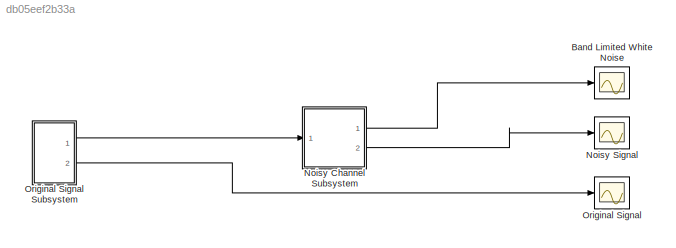
MODEL slx_db05eef2b33a
KIND model
CONFIG AbsTol = auto
CONFIG EnableMultiTasking = off
CONFIG FixedStep = auto
CONFIG MaxStep = auto
CONFIG MinStep = auto
CONFIG RelTol = 1e-3
CONFIG SampleTimeConstraint = Unconstrained
CONFIG Solver = VariableStepAuto
CONFIG SolverName = VariableStepAuto
CONFIG StartTime = 0.0
CONFIG StopTime = 10.0
BLOCK [Scope] Band Limited White Noise 
  Floating = off
  NumInputPorts = 3
  Ports = [3]
  ScopeSpecificationString = Simulink.scopes.TimeScopeBlockCfg('CurrentConfiguration', extmgr.ConfigurationSet(extmgr.Configuration('Core','General UI',true),extmgr.Configuration('Core','Source UI',true),extmgr.Configuration('Sources','WiredSimulink',true,'DataLoggingVariableName','ScopeData2'),extmgr.Configuration('Visuals','Time Domain',true,'SerializedDisplays',{struct('MinYLimReal','-2.94144','MaxYLimReal','3.76225','YLab...<+1442ch>
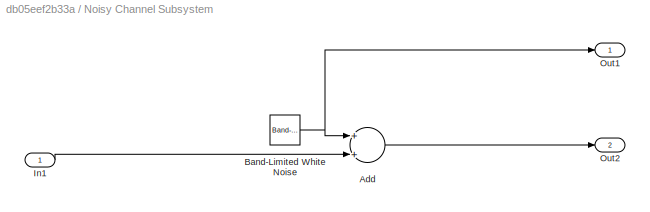
BLOCK [SubSystem] Noisy Channel Subsystem 
  Ports = [1, 2]
  RequestExecContextInheritance = off
BLOCK [Sum] Noisy Channel Subsystem /Add
  InputSameDT = off
  OutDataTypeStr = Inherit: Inherit via internal rule
  Ports = [2, 1]
  SaturateOnIntegerOverflow = off
BLOCK [Reference] Noisy Channel Subsystem /Band-Limited White Noise  REF=simulink/Sources/Band-Limited
White Noise
  Ports = [0, 1]
  SourceBlock = simulink/Sources/Band-Limited\nWhite Noise
  SourceProductBaseCode = SL
  SourceProductName = Simulink
  SourceType = Band-Limited White Noise.
BLOCK [Inport] Noisy Channel Subsystem /In1
  IconDisplay = Port number
BLOCK [Outport] Noisy Channel Subsystem /Out1
  IconDisplay = Port number
BLOCK [Outport] Noisy Channel Subsystem /Out2
  IconDisplay = Port number
  Port = 2
BLOCK [Scope] Noisy Signal 
  Floating = off
  NumInputPorts = 3
  Ports = [3]
  ScopeSpecificationString = Simulink.scopes.TimeScopeBlockCfg('CurrentConfiguration', extmgr.ConfigurationSet(extmgr.Configuration('Core','General UI',true),extmgr.Configuration('Core','Source UI',true),extmgr.Configuration('Sources','WiredSimulink',true),extmgr.Configuration('Visuals','Time Domain',true,'SerializedDisplays',{struct('MinYLimReal','-7.50207','MaxYLimReal','7.83784','YLabelReal','','MinYLimMag','0.00000','MaxY...<+1379ch>
BLOCK [Scope] Original Signal 
  Floating = off
  NumInputPorts = 3
  Ports = [3]
  ScopeSpecificationString = Simulink.scopes.TimeScopeBlockCfg('CurrentConfiguration', extmgr.ConfigurationSet(extmgr.Configuration('Core','General UI',true),extmgr.Configuration('Core','Source UI',true),extmgr.Configuration('Sources','WiredSimulink',true,'DataLoggingVariableName','ScopeData1'),extmgr.Configuration('Visuals','Time Domain',true,'SerializedDisplays',{struct('MinYLimReal','-4.9441','MaxYLimReal','4.94863','YLabe...<+1415ch>
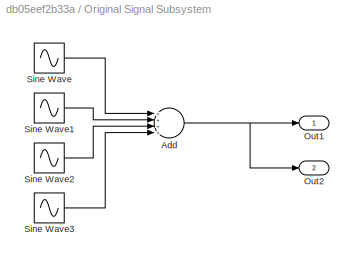
BLOCK [SubSystem] Original Signal Subsystem 
  Ports = [0, 2]
  RequestExecContextInheritance = off
BLOCK [Sum] Original Signal Subsystem /Add
  InputSameDT = off
  Inputs = ++++
  OutDataTypeStr = Inherit: Inherit via internal rule
  Ports = [4, 1]
  SaturateOnIntegerOverflow = off
BLOCK [Outport] Original Signal Subsystem /Out1
  IconDisplay = Port number
BLOCK [Outport] Original Signal Subsystem /Out2
  IconDisplay = Port number
  Port = 2
BLOCK [Sin] Original Signal Subsystem /Sine Wave
  Frequency = 100
  Ports = [0, 1]
  SampleTime = 0
BLOCK [Sin] Original Signal Subsystem /Sine Wave1
  Frequency = 9788
  Ports = [0, 1]
  SampleTime = 0
BLOCK [Sin] Original Signal Subsystem /Sine Wave2
  Frequency = 3451
  Ports = [0, 1]
  SampleTime = 0
BLOCK [Sin] Original Signal Subsystem /Sine Wave3
  Frequency = 2
  Ports = [0, 1]
  SampleTime = 0
LINE Noisy Channel Subsystem /Add:1 -> Noisy Channel Subsystem /Out2:1
NET Noisy Channel Subsystem /Band-Limited White Noise:1 -> Noisy Channel Subsystem /Add:1, Noisy Channel Subsystem /Out1:1
LINE Noisy Channel Subsystem /In1:1 -> Noisy Channel Subsystem /Add:2
LINE Noisy Channel Subsystem :1 -> Band Limited White Noise :2
LINE Noisy Channel Subsystem :2 -> Noisy Signal :2
NET Original Signal Subsystem /Add:1 -> Original Signal Subsystem /Out1:1, Original Signal Subsystem /Out2:1
LINE Original Signal Subsystem /Sine Wave1:1 -> Original Signal Subsystem /Add:2
LINE Original Signal Subsystem /Sine Wave2:1 -> Original Signal Subsystem /Add:3
LINE Original Signal Subsystem /Sine Wave3:1 -> Original Signal Subsystem /Add:4
LINE Original Signal Subsystem /Sine Wave:1 -> Original Signal Subsystem /Add:1
LINE Original Signal Subsystem :1 -> Noisy Channel Subsystem :1
LINE Original Signal Subsystem :2 -> Original Signal :2
note: NET lines group one-source signal fan-out (src -> all destinations, sorted); 1:1 wires keep LINE
